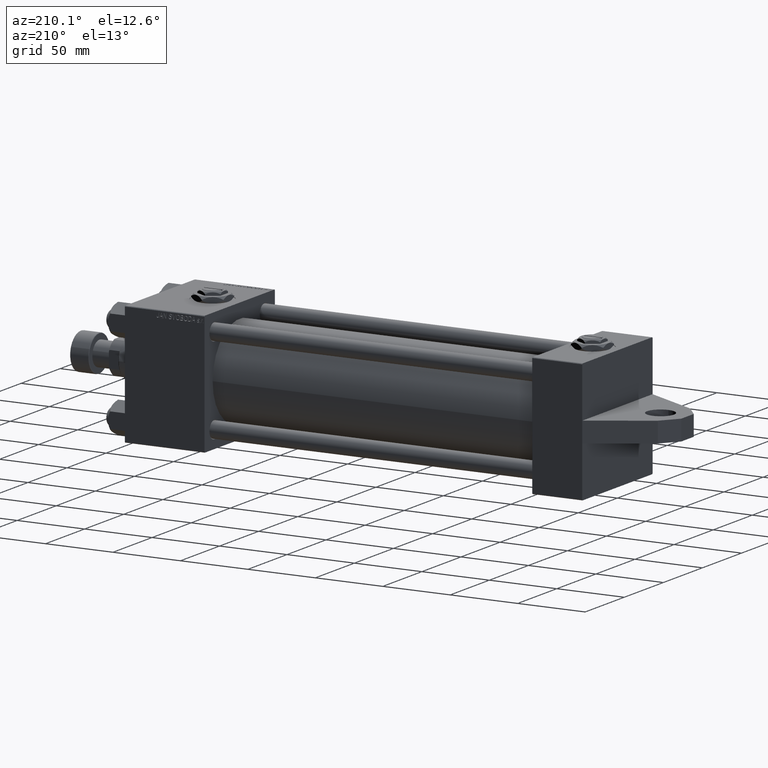
[diagram: clean part render]
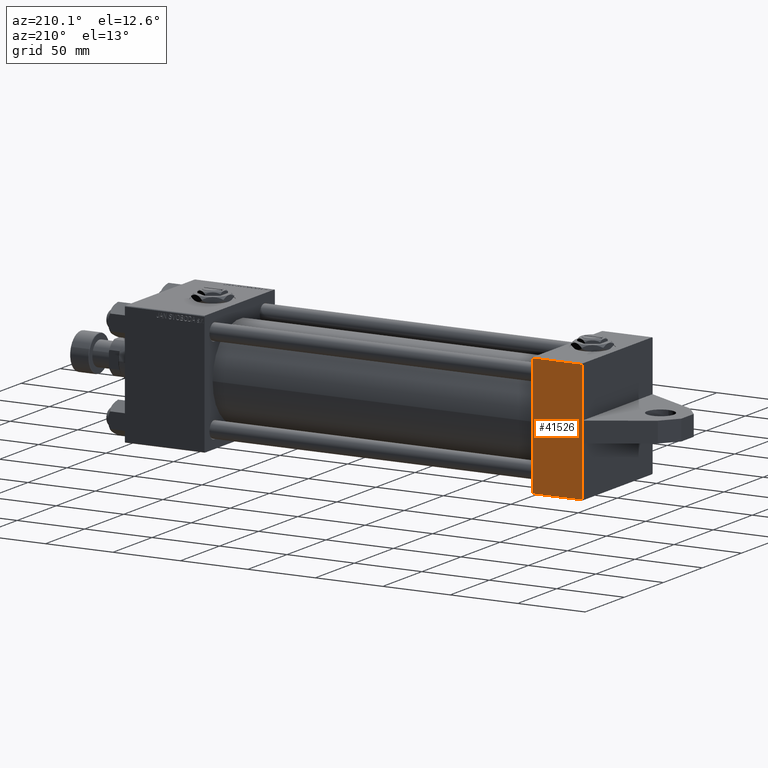
[diagram: same view with one face highlighted and labeled with its STEP entity id]
A machine part, auxiliary view. The second image highlights one B-rep face of the part: STEP entity #41526.
In plain terms, the highlighted planar face has unit normal (-0, 1, 0).
Its self-contained STEP definition (entity closure, byte-faithful):
#2587 = ORIENTED_EDGE ( 'NONE', *, *, #12365, .T. ) ;
#3799 = CARTESIAN_POINT ( 'NONE',  ( 37.00000000000000000, -44.49999999999995737, -45.00000000000000000 ) ) ;
#5760 = CARTESIAN_POINT ( 'NONE',  ( 37.00000000000000000, 44.49999999999998579, -44.99999999999998579 ) ) ;
#6432 = DIRECTION ( 'NONE',  ( 0.000000000000000000, 1.000000000000000000, 1.541976423090495880E-16 ) ) ;
#6628 = CARTESIAN_POINT ( 'NONE',  ( 0.000000000000000000, -7.500000000000000000, -45.00000000000000000 ) ) ;
#7301 = VERTEX_POINT ( 'NONE', #3799 ) ;
#8088 = LINE ( 'NONE', #34392, #46682 ) ;
#9091 = CARTESIAN_POINT ( 'NONE',  ( 0.000000000000000000, -44.49999999999995737, -45.00000000000000000 ) ) ;
#9640 = VERTEX_POINT ( 'NONE', #24979 ) ;
#10061 = CARTESIAN_POINT ( 'NONE',  ( 0.000000000000000000, 44.99999999999998579, -44.99999999999998579 ) ) ;
#10149 = AXIS2_PLACEMENT_3D ( 'NONE', #25359, #36184, #6432 ) ;
#10353 = FACE_OUTER_BOUND ( 'NONE', #31409, .T. ) ;
#11804 = LINE ( 'NONE', #22875, #32889 ) ;
#12365 = EDGE_CURVE ( 'NONE', #9640, #41204, #8088, .T. ) ;
#13950 = VERTEX_POINT ( 'NONE', #36308 ) ;
#16967 = VECTOR ( 'NONE', #29413, 1000.000000000000000 ) ;
#17691 = LINE ( 'NONE', #6628, #48403 ) ;
#19841 = VERTEX_POINT ( 'NONE', #41267 ) ;
#20730 = ORIENTED_EDGE ( 'NONE', *, *, #21121, .T. ) ;
#21121 = EDGE_CURVE ( 'NONE', #13950, #19841, #17691, .T. ) ;
#21567 = CARTESIAN_POINT ( 'NONE',  ( 0.000000000000000000, 44.99999999999998579, -44.99999999999998579 ) ) ;
#21870 = ORIENTED_EDGE ( 'NONE', *, *, #31824, .F. ) ;
#22301 = DIRECTION ( 'NONE',  ( -1.000000000000000000, 0.000000000000000000, 0.000000000000000000 ) ) ;
#22875 = CARTESIAN_POINT ( 'NONE',  ( 37.00000000000000000, 44.99999999999998579, -44.99999999999998579 ) ) ;
#24881 = PLANE ( 'NONE',  #10149 ) ;
#24979 = CARTESIAN_POINT ( 'NONE',  ( 0.000000000000000000, 44.49999999999998579, -44.99999999999998579 ) ) ;
#25359 = CARTESIAN_POINT ( 'NONE',  ( 37.00000000000000000, 44.99999999999998579, -44.99999999999998579 ) ) ;
#26929 = EDGE_CURVE ( 'NONE', #13950, #41759, #39080, .T. ) ;
#29413 = DIRECTION ( 'NONE',  ( 0.000000000000000000, -1.000000000000000000, -1.541976423090495633E-16 ) ) ;
#30714 = DIRECTION ( 'NONE',  ( 1.000000000000000000, 0.000000000000000000, 0.000000000000000000 ) ) ;
#31409 = EDGE_LOOP ( 'NONE', ( #21870, #2587, #36411, #32487, #36271, #20730 ) ) ;
#31824 = EDGE_CURVE ( 'NONE', #9640, #19841, #36789, .T. ) ;
#31956 = VECTOR ( 'NONE', #22301, 1000.000000000000000 ) ;
#32487 = ORIENTED_EDGE ( 'NONE', *, *, #33456, .T. ) ;
#32889 = VECTOR ( 'NONE', #41791, 1000.000000000000000 ) ;
#33456 = EDGE_CURVE ( 'NONE', #7301, #41759, #40971, .T. ) ;
#34392 = CARTESIAN_POINT ( 'NONE',  ( 37.00000000000000000, 44.49999999999998579, -44.99999999999998579 ) ) ;
#36184 = DIRECTION ( 'NONE',  ( 0.000000000000000000, 1.541976423090495880E-16, -1.000000000000000000 ) ) ;
#36271 = ORIENTED_EDGE ( 'NONE', *, *, #26929, .F. ) ;
#36308 = CARTESIAN_POINT ( 'NONE',  ( 0.000000000000000000, -7.499999999999985789, -44.99999999999999289 ) ) ;
#36411 = ORIENTED_EDGE ( 'NONE', *, *, #37903, .T. ) ;
#36789 = LINE ( 'NONE', #21567, #16967 ) ;
#37903 = EDGE_CURVE ( 'NONE', #41204, #7301, #11804, .T. ) ;
#39080 = LINE ( 'NONE', #10061, #48605 ) ;
#39805 = DIRECTION ( 'NONE',  ( 0.000000000000000000, -1.000000000000000000, -1.541976423090495633E-16 ) ) ;
#40971 = LINE ( 'NONE', #45386, #31956 ) ;
#41204 = VERTEX_POINT ( 'NONE', #5760 ) ;
#41267 = CARTESIAN_POINT ( 'NONE',  ( 0.000000000000000000, 7.500000000000000000, -45.00000000000000000 ) ) ;
#41526 = ADVANCED_FACE ( 'NONE', ( #10353 ), #24881, .T. ) ;
#41759 = VERTEX_POINT ( 'NONE', #9091 ) ;
#41791 = DIRECTION ( 'NONE',  ( 0.000000000000000000, -1.000000000000000000, -1.541976423090495633E-16 ) ) ;
#45386 = CARTESIAN_POINT ( 'NONE',  ( 0.000000000000000000, -44.49999999999998579, -45.00000000000000000 ) ) ;
#46682 = VECTOR ( 'NONE', #30714, 1000.000000000000000 ) ;
#47667 = DIRECTION ( 'NONE',  ( 0.000000000000000000, 1.000000000000000000, 0.000000000000000000 ) ) ;
#48403 = VECTOR ( 'NONE', #47667, 1000.000000000000000 ) ;
#48605 = VECTOR ( 'NONE', #39805, 1000.000000000000000 ) ;